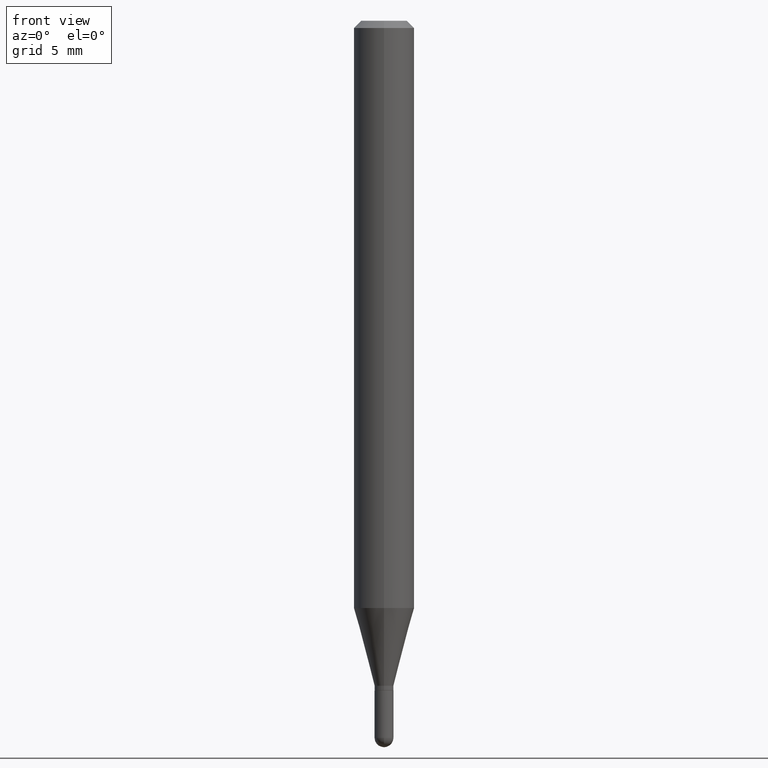
[diagram: clean part render]
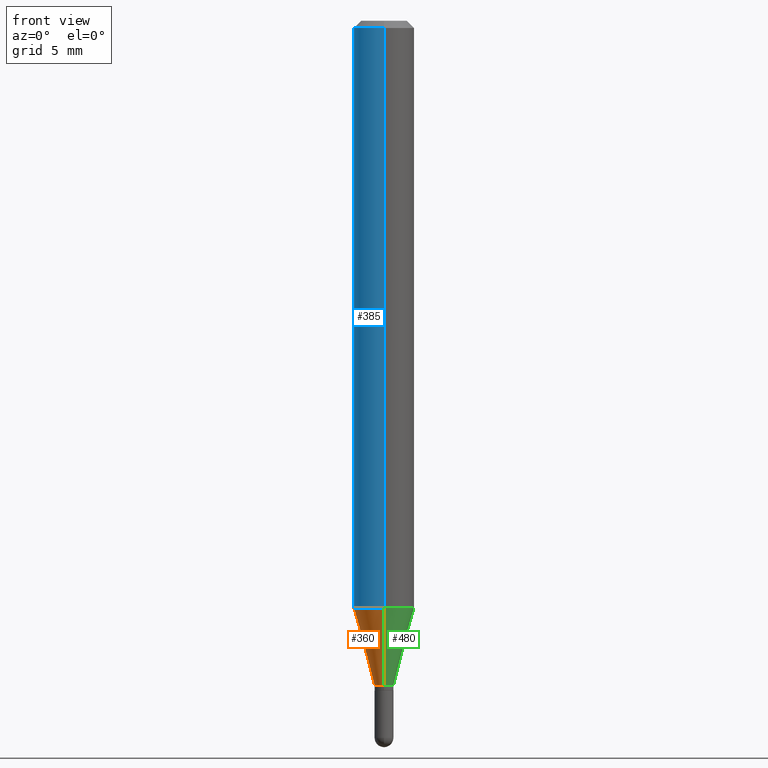
[diagram: same view with three faces highlighted in distinct colors, each labeled with its STEP entity id]
A machine part, front view with three faces highlighted in distinct colors.
Their STEP definitions:

[orange] entity #360 — the highlighted conical surface has half-angle 15 deg.
#9 = DIRECTION ( 'NONE',  ( -6.982962677686266711E-15, -1.000000000000000000, 0.000000000000000000 ) ) ;
#22 = CIRCLE ( 'NONE', #411, 0.06250000000000000000 ) ;
#30 = CARTESIAN_POINT ( 'NONE',  ( 2.913225216616725443E-16, 0.01949999999999512887, -1.372999999999999998 ) ) ;
#46 = VECTOR ( 'NONE', #94, 39.37007874015748854 ) ;
#48 = CARTESIAN_POINT ( 'NONE',  ( 3.357625738295131840E-29, -4.793808077877542953E-15, -1.372999999999999998 ) ) ;
#61 = DIRECTION ( 'NONE',  ( -2.445466670280503659E-29, 3.491484397580147957E-15, 1.000000000000000000 ) ) ;
#84 = CARTESIAN_POINT ( 'NONE',  ( -4.364351673553620871E-16, -0.06250000000000424660, -1.212521815274538728 ) ) ;
#89 = ORIENTED_EDGE ( 'NONE', *, *, #371, .T. ) ;
#91 = DIRECTION ( 'NONE',  ( -2.445466670280503659E-29, 3.491484397580147957E-15, 1.000000000000000000 ) ) ;
#94 = DIRECTION ( 'NONE',  ( -1.807323732225332111E-15, -0.2588190451025184635, 0.9659258262890689783 ) ) ;
#96 = CIRCLE ( 'NONE', #243, 0.01949999999999992017 ) ;
#106 = LINE ( 'NONE', #154, #162 ) ;
#121 = DIRECTION ( 'NONE',  ( -2.445466670280503659E-29, 3.491484397580147957E-15, 1.000000000000000000 ) ) ;
#153 = EDGE_CURVE ( 'NONE', #197, #327, #22, .T. ) ;
#154 = CARTESIAN_POINT ( 'NONE',  ( 1.385558334732525203E-16, 0.01949999999999512887, -1.372999999999999998 ) ) ;
#162 = VECTOR ( 'NONE', #473, 39.37007874015748143 ) ;
#177 = VERTEX_POINT ( 'NONE', #511 ) ;
#195 = DIRECTION ( 'NONE',  ( -6.982962677686265922E-15, -1.000000000000000000, 4.370956789862821150E-15 ) ) ;
#197 = VERTEX_POINT ( 'NONE', #392 ) ;
#200 = ORIENTED_EDGE ( 'NONE', *, *, #291, .F. ) ;
#217 = CONICAL_SURFACE ( 'NONE', #266, 0.01949999999999992017, 0.2617993877991505736 ) ;
#243 = AXIS2_PLACEMENT_3D ( 'NONE', #48, #121, #400 ) ;
#246 = VERTEX_POINT ( 'NONE', #30 ) ;
#266 = AXIS2_PLACEMENT_3D ( 'NONE', #447, #91, #9 ) ;
#287 = FACE_OUTER_BOUND ( 'NONE', #507, .T. ) ;
#291 = EDGE_CURVE ( 'NONE', #246, #197, #106, .T. ) ;
#294 = ORIENTED_EDGE ( 'NONE', *, *, #462, .T. ) ;
#318 = CARTESIAN_POINT ( 'NONE',  ( 2.965181686241898291E-29, -4.233500999756610852E-15, -1.212521815274538728 ) ) ;
#327 = VERTEX_POINT ( 'NONE', #84 ) ;
#328 = CARTESIAN_POINT ( 'NONE',  ( -1.361677722148480659E-16, -0.01950000000000471495, -1.372999999999999998 ) ) ;
#352 = ORIENTED_EDGE ( 'NONE', *, *, #153, .F. ) ;
#360 = ADVANCED_FACE ( 'NONE', ( #287 ), #217, .T. ) ;
#371 = EDGE_CURVE ( 'NONE', #246, #177, #96, .T. ) ;
#392 = CARTESIAN_POINT ( 'NONE',  ( 4.440892098500920012E-16, 0.06249999999999574646, -1.212521815274538950 ) ) ;
#400 = DIRECTION ( 'NONE',  ( -6.982962677686266711E-15, -1.000000000000000000, 0.000000000000000000 ) ) ;
#411 = AXIS2_PLACEMENT_3D ( 'NONE', #318, #61, #195 ) ;
#447 = CARTESIAN_POINT ( 'NONE',  ( 3.357625738295131840E-29, -4.793808077877542953E-15, -1.372999999999999998 ) ) ;
#455 = LINE ( 'NONE', #328, #46 ) ;
#462 = EDGE_CURVE ( 'NONE', #177, #327, #455, .T. ) ;
#473 = DIRECTION ( 'NONE',  ( 1.839019923739602287E-15, 0.2588190451025252359, 0.9659258262890670910 ) ) ;
#507 = EDGE_LOOP ( 'NONE', ( #200, #89, #294, #352 ) ) ;
#511 = CARTESIAN_POINT ( 'NONE',  ( -1.361677722148480659E-16, -0.01950000000000471495, -1.372999999999999998 ) ) ;

[blue] entity #385 — the highlighted cylindrical surface (edge-blend (fillet) strip) has radius 1.5875 mm, axis along (-0, 0, 1).
#22 = CIRCLE ( 'NONE', #411, 0.06250000000000000000 ) ;
#25 = EDGE_CURVE ( 'NONE', #197, #373, #391, .T. ) ;
#41 = ORIENTED_EDGE ( 'NONE', *, *, #25, .F. ) ;
#45 = DIRECTION ( 'NONE',  ( -2.445466670280503659E-29, 3.491484397580147957E-15, 1.000000000000000000 ) ) ;
#61 = DIRECTION ( 'NONE',  ( -2.445466670280503659E-29, 3.491484397580147957E-15, 1.000000000000000000 ) ) ;
#62 = ORIENTED_EDGE ( 'NONE', *, *, #496, .T. ) ;
#83 = CARTESIAN_POINT ( 'NONE',  ( -4.364351673553912750E-16, -0.06250000000000005551, -0.01499999999999954321 ) ) ;
#84 = CARTESIAN_POINT ( 'NONE',  ( -4.364351673553620871E-16, -0.06250000000000424660, -1.212521815274538728 ) ) ;
#113 = CARTESIAN_POINT ( 'NONE',  ( 4.440892098500625669E-16, 0.06250000000000000000, -2.182177748487592473E-16 ) ) ;
#119 = DIRECTION ( 'NONE',  ( -6.982962677686265922E-15, -1.000000000000000000, 3.483106191921935554E-15 ) ) ;
#153 = EDGE_CURVE ( 'NONE', #197, #327, #22, .T. ) ;
#178 = CARTESIAN_POINT ( 'NONE',  ( -4.364351673553916201E-16, -0.06250000000000000000, 2.182177748487592473E-16 ) ) ;
#195 = DIRECTION ( 'NONE',  ( -6.982962677686265922E-15, -1.000000000000000000, 4.370956789862821150E-15 ) ) ;
#197 = VERTEX_POINT ( 'NONE', #392 ) ;
#208 = AXIS2_PLACEMENT_3D ( 'NONE', #241, #45, #444 ) ;
#210 = ORIENTED_EDGE ( 'NONE', *, *, #153, .T. ) ;
#241 = CARTESIAN_POINT ( 'NONE',  ( 0.000000000000000000, 0.000000000000000000, 0.000000000000000000 ) ) ;
#280 = FACE_OUTER_BOUND ( 'NONE', #464, .T. ) ;
#281 = CARTESIAN_POINT ( 'NONE',  ( 4.440892098500923957E-16, 0.06249999999999995143, -0.01499999999999997863 ) ) ;
#292 = VECTOR ( 'NONE', #427, 39.37007874015748143 ) ;
#295 = LINE ( 'NONE', #178, #460 ) ;
#314 = CARTESIAN_POINT ( 'NONE',  ( 3.668200005420697037E-31, -5.237226596370138612E-17, -0.01499999999999976179 ) ) ;
#318 = CARTESIAN_POINT ( 'NONE',  ( 2.965181686241898291E-29, -4.233500999756610852E-15, -1.212521815274538728 ) ) ;
#323 = ORIENTED_EDGE ( 'NONE', *, *, #439, .F. ) ;
#327 = VERTEX_POINT ( 'NONE', #84 ) ;
#337 = VERTEX_POINT ( 'NONE', #83 ) ;
#373 = VERTEX_POINT ( 'NONE', #281 ) ;
#376 = DIRECTION ( 'NONE',  ( -2.445466670280503659E-29, 3.491484397580147957E-15, 1.000000000000000000 ) ) ;
#385 = ADVANCED_FACE ( 'NONE', ( #280 ), #438, .T. ) ;
#391 = LINE ( 'NONE', #113, #292 ) ;
#392 = CARTESIAN_POINT ( 'NONE',  ( 4.440892098500920012E-16, 0.06249999999999574646, -1.212521815274538950 ) ) ;
#411 = AXIS2_PLACEMENT_3D ( 'NONE', #318, #61, #195 ) ;
#422 = CIRCLE ( 'NONE', #510, 0.06250000000000000000 ) ;
#427 = DIRECTION ( 'NONE',  ( -2.445466670280503659E-29, 3.491484397580147957E-15, 1.000000000000000000 ) ) ;
#438 = CYLINDRICAL_SURFACE ( 'NONE', #208, 0.06250000000000000000 ) ;
#439 = EDGE_CURVE ( 'NONE', #373, #337, #422, .T. ) ;
#444 = DIRECTION ( 'NONE',  ( -6.982962677686265922E-15, -1.000000000000000000, 3.491484397580147957E-15 ) ) ;
#460 = VECTOR ( 'NONE', #376, 39.37007874015748143 ) ;
#464 = EDGE_LOOP ( 'NONE', ( #41, #210, #62, #323 ) ) ;
#474 = DIRECTION ( 'NONE',  ( -2.445466670280503659E-29, 3.491484397580147957E-15, 1.000000000000000000 ) ) ;
#496 = EDGE_CURVE ( 'NONE', #327, #337, #295, .T. ) ;
#510 = AXIS2_PLACEMENT_3D ( 'NONE', #314, #474, #119 ) ;

[green] entity #480 — the highlighted conical surface has half-angle 15 deg.
#4 = DIRECTION ( 'NONE',  ( -2.445466670280503659E-29, 3.491484397580147957E-15, 1.000000000000000000 ) ) ;
#26 = ORIENTED_EDGE ( 'NONE', *, *, #462, .F. ) ;
#30 = CARTESIAN_POINT ( 'NONE',  ( 2.913225216616725443E-16, 0.01949999999999512887, -1.372999999999999998 ) ) ;
#32 = DIRECTION ( 'NONE',  ( -2.445466670280503659E-29, 3.491484397580147957E-15, 1.000000000000000000 ) ) ;
#36 = DIRECTION ( 'NONE',  ( -6.982962677686266711E-15, -1.000000000000000000, 0.000000000000000000 ) ) ;
#46 = VECTOR ( 'NONE', #94, 39.37007874015748854 ) ;
#52 = ORIENTED_EDGE ( 'NONE', *, *, #291, .T. ) ;
#60 = EDGE_CURVE ( 'NONE', #177, #246, #396, .T. ) ;
#71 = CONICAL_SURFACE ( 'NONE', #169, 0.01949999999999992017, 0.2617993877991505736 ) ;
#79 = AXIS2_PLACEMENT_3D ( 'NONE', #408, #4, #201 ) ;
#81 = CARTESIAN_POINT ( 'NONE',  ( 3.357625738295131840E-29, -4.793808077877542953E-15, -1.372999999999999998 ) ) ;
#84 = CARTESIAN_POINT ( 'NONE',  ( -4.364351673553620871E-16, -0.06250000000000424660, -1.212521815274538728 ) ) ;
#94 = DIRECTION ( 'NONE',  ( -1.807323732225332111E-15, -0.2588190451025184635, 0.9659258262890689783 ) ) ;
#106 = LINE ( 'NONE', #154, #162 ) ;
#136 = DIRECTION ( 'NONE',  ( -2.445466670280503659E-29, 3.491484397580147957E-15, 1.000000000000000000 ) ) ;
#141 = DIRECTION ( 'NONE',  ( -6.982962677686266711E-15, -1.000000000000000000, 0.000000000000000000 ) ) ;
#154 = CARTESIAN_POINT ( 'NONE',  ( 1.385558334732525203E-16, 0.01949999999999512887, -1.372999999999999998 ) ) ;
#162 = VECTOR ( 'NONE', #473, 39.37007874015748143 ) ;
#169 = AXIS2_PLACEMENT_3D ( 'NONE', #214, #136, #141 ) ;
#174 = FACE_OUTER_BOUND ( 'NONE', #412, .T. ) ;
#177 = VERTEX_POINT ( 'NONE', #511 ) ;
#186 = AXIS2_PLACEMENT_3D ( 'NONE', #81, #32, #36 ) ;
#197 = VERTEX_POINT ( 'NONE', #392 ) ;
#201 = DIRECTION ( 'NONE',  ( -6.982962677686265922E-15, -1.000000000000000000, 4.370956789862821150E-15 ) ) ;
#214 = CARTESIAN_POINT ( 'NONE',  ( 3.357625738295131840E-29, -4.793808077877542953E-15, -1.372999999999999998 ) ) ;
#220 = ORIENTED_EDGE ( 'NONE', *, *, #60, .T. ) ;
#246 = VERTEX_POINT ( 'NONE', #30 ) ;
#291 = EDGE_CURVE ( 'NONE', #246, #197, #106, .T. ) ;
#327 = VERTEX_POINT ( 'NONE', #84 ) ;
#328 = CARTESIAN_POINT ( 'NONE',  ( -1.361677722148480659E-16, -0.01950000000000471495, -1.372999999999999998 ) ) ;
#392 = CARTESIAN_POINT ( 'NONE',  ( 4.440892098500920012E-16, 0.06249999999999574646, -1.212521815274538950 ) ) ;
#396 = CIRCLE ( 'NONE', #186, 0.01949999999999992017 ) ;
#401 = EDGE_CURVE ( 'NONE', #327, #197, #443, .T. ) ;
#408 = CARTESIAN_POINT ( 'NONE',  ( 2.965181686241898291E-29, -4.233500999756610852E-15, -1.212521815274538728 ) ) ;
#412 = EDGE_LOOP ( 'NONE', ( #220, #52, #500, #26 ) ) ;
#443 = CIRCLE ( 'NONE', #79, 0.06250000000000000000 ) ;
#455 = LINE ( 'NONE', #328, #46 ) ;
#462 = EDGE_CURVE ( 'NONE', #177, #327, #455, .T. ) ;
#473 = DIRECTION ( 'NONE',  ( 1.839019923739602287E-15, 0.2588190451025252359, 0.9659258262890670910 ) ) ;
#480 = ADVANCED_FACE ( 'NONE', ( #174 ), #71, .T. ) ;
#500 = ORIENTED_EDGE ( 'NONE', *, *, #401, .F. ) ;
#511 = CARTESIAN_POINT ( 'NONE',  ( -1.361677722148480659E-16, -0.01950000000000471495, -1.372999999999999998 ) ) ;